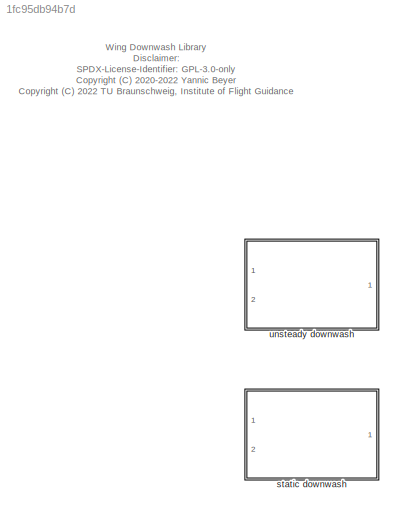
MODEL slx_1fc95db94b7d
KIND library
CONFIG AbsTol = auto
CONFIG EnableMultiTasking = off
CONFIG FixedStep = auto
CONFIG MaxStep = auto
CONFIG MinStep = auto
CONFIG RelTol = 1e-3
CONFIG SampleTimeConstraint = Unconstrained
CONFIG Solver = VariableStepAuto
CONFIG SolverName = VariableStepAuto
CONFIG StartTime = 0.0
CONFIG StopTime = 10.0
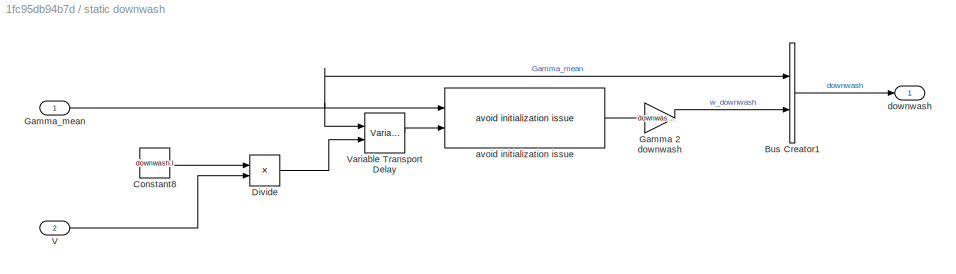
BLOCK [SubSystem] static downwash
  Ports = [2, 1]
  RequestExecContextInheritance = off
BLOCK [BusCreator] static downwash/Bus Creator1
  DisplayOption = bar
  InheritFromInputs = on
  Inputs = 2
  Ports = [2, 1]
BLOCK [Constant] static downwash/Constant8
  OutDataTypeStr = Inherit: Inherit via back propagation
  Value = downwash.l
BLOCK [Product] static downwash/Divide
  InputSameDT = off
  Inputs = */
  OutDataTypeStr = Inherit: Inherit via internal rule
  Ports = [2, 1]
  RndMeth = Floor
  SaturateOnIntegerOverflow = off
BLOCK [Gain] static downwash/Gamma 2 downwash
  Gain = downwash.b(end)/downwash.a(end)
  OutDataTypeStr = Inherit: Inherit via internal rule
  ParamDataTypeStr = Inherit: Inherit via internal rule
  SaturateOnIntegerOverflow = off
BLOCK [Inport] static downwash/Gamma_mean
  IconDisplay = Port number
BLOCK [Inport] static downwash/V
  IconDisplay = Port number
  Port = 2
BLOCK [VariableTransportDelay] static downwash/Variable Transport Delay
  MaximumDelay = 10
  Ports = [2, 1]
  VariableDelayType = Variable transport delay
BLOCK [Reference] static downwash/avoid initialization issue  REF=$bdroot/unsteady downwash/avoid initialization issue
  Ports = [2, 1]
  SourceBlock = $bdroot/unsteady downwash/avoid initialization issue
  SourceType = SubSystem
BLOCK [Outport] static downwash/downwash
  IconDisplay = Port number
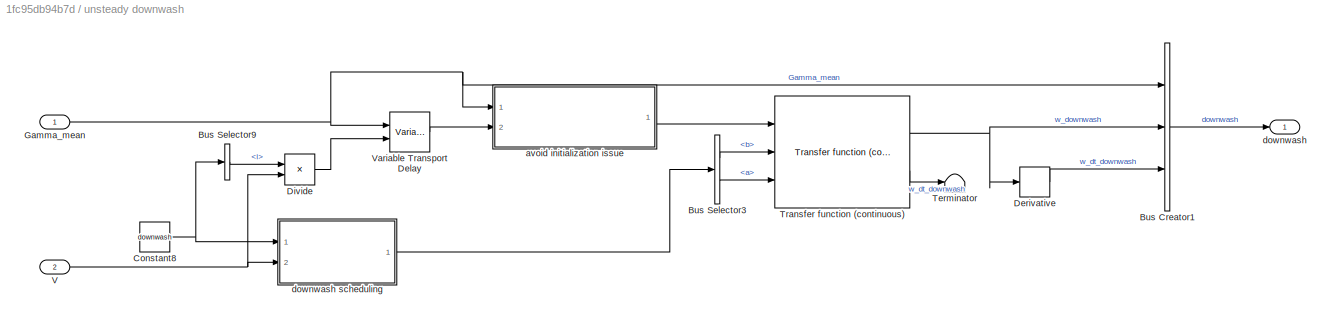
BLOCK [SubSystem] unsteady downwash
  Ports = [2, 1]
  RequestExecContextInheritance = off
BLOCK [BusCreator] unsteady downwash/Bus Creator1
  DisplayOption = bar
  InheritFromInputs = on
  Inputs = 3
  Ports = [3, 1]
BLOCK [BusSelector] unsteady downwash/Bus Selector3
  OutputAsBus = off
  OutputSignals = b,a
  Ports = [1, 2]
BLOCK [BusSelector] unsteady downwash/Bus Selector9
  OutputAsBus = off
  OutputSignals = l
  Ports = [1, 1]
BLOCK [Constant] unsteady downwash/Constant8
  OutDataTypeStr = Bus: downwash_bus
  Value = downwash
BLOCK [Derivative] unsteady downwash/Derivative
BLOCK [Product] unsteady downwash/Divide
  InputSameDT = off
  Inputs = */
  OutDataTypeStr = Inherit: Inherit via internal rule
  Ports = [2, 1]
  RndMeth = Floor
  SaturateOnIntegerOverflow = off
BLOCK [Inport] unsteady downwash/Gamma_mean
  IconDisplay = Port number
BLOCK [Terminator] unsteady downwash/Terminator
BLOCK [Reference] unsteady downwash/Transfer function (continuous)  REF=linear_systems_lib/Transfer function (continuous)  (lib defined in slx_6d7ae23f43cd)
  Ports = [3, 2]
  SourceBlock = linear_systems_lib/Transfer function (continuous)
  SourceProductName = LADAC
BLOCK [Inport] unsteady downwash/V
  IconDisplay = Port number
  Port = 2
BLOCK [VariableTransportDelay] unsteady downwash/Variable Transport Delay
  MaximumDelay = 10
  Ports = [2, 1]
  VariableDelayType = Variable transport delay
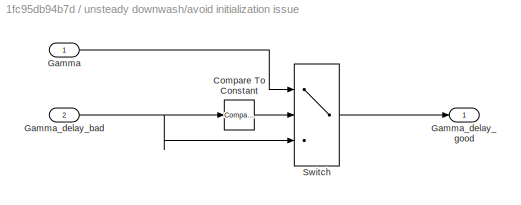
BLOCK [SubSystem] unsteady downwash/avoid initialization issue
  Ports = [2, 1]
  RequestExecContextInheritance = off
BLOCK [Reference] unsteady downwash/avoid initialization issue/Compare To Constant  REF=simulink/Logic and Bit
Operations/Compare
To Constant
  Ports = [1, 1]
  SourceBlock = simulink/Logic and Bit\nOperations/Compare\nTo Constant
  SourceProductBaseCode = SL
  SourceProductName = Simulink
  SourceType = Compare To Constant
BLOCK [Inport] unsteady downwash/avoid initialization issue/Gamma
  IconDisplay = Port number
BLOCK [Inport] unsteady downwash/avoid initialization issue/Gamma_delay_bad
  IconDisplay = Port number
  Port = 2
BLOCK [Outport] unsteady downwash/avoid initialization issue/Gamma_delay_good
  IconDisplay = Port number
BLOCK [Switch] unsteady downwash/avoid initialization issue/Switch
  Criteria = u2 > Threshold
  InputSameDT = off
  SaturateOnIntegerOverflow = off
  Threshold = 0.5
BLOCK [Outport] unsteady downwash/downwash
  IconDisplay = Port number
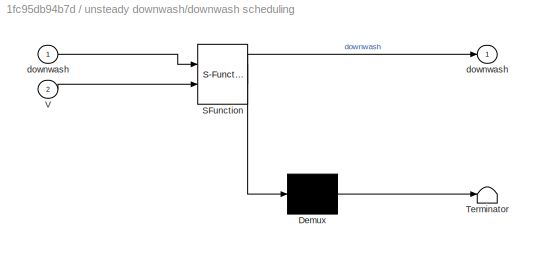
BLOCK [SubSystem] unsteady downwash/downwash scheduling
  ErrorFcn = Stateflow.Translate.translate
  PermitHierarchicalResolution = ExplicitOnly
  Ports = [2, 1]
  RequestExecContextInheritance = off
  SFBlockType = MATLAB Function
  TreatAsAtomicUnit = on
BLOCK [Demux] unsteady downwash/downwash scheduling/ Demux 
  Outputs = 1
  Ports = [1, 1]
BLOCK [S-Function] unsteady downwash/downwash scheduling/ SFunction 
  EnableBusSupport = off
  FunctionName = sf_sfun
  PortCounts = [2 2]
  Ports = [2, 2]
  SFcnIsStateOwnerBlock = off
  SFunctionDeploymentMode = off
  Tag = Stateflow S-Function wing_downwash_lib 9
BLOCK [Terminator] unsteady downwash/downwash scheduling/ Terminator 
BLOCK [Inport] unsteady downwash/downwash scheduling/V
  IconDisplay = Port number
  Port = 2
BLOCK [Outport] unsteady downwash/downwash scheduling/downwash
  IconDisplay = Port number
BLOCK [Inport] unsteady downwash/downwash scheduling/downwash 
  IconDisplay = Port number
ANNOTATION (root): Wing Downwash Library Disclaimer: SPDX-License-Identifier: GPL-3.0-only <copyright redacted>
LINE static downwash/Bus Creator1:1 -> static downwash/downwash:1
LINE static downwash/Constant8:1 -> static downwash/Divide:1
LINE static downwash/Divide:1 -> static downwash/Variable Transport Delay:2
LINE static downwash/Gamma 2 downwash:1 -> static downwash/Bus Creator1:2
NET static downwash/Gamma_mean:1 -> static downwash/Bus Creator1:1, static downwash/Variable Transport Delay:1, static downwash/avoid initialization issue:1
LINE static downwash/V:1 -> static downwash/Divide:2
LINE static downwash/Variable Transport Delay:1 -> static downwash/avoid initialization issue:2
LINE static downwash/avoid initialization issue:1 -> static downwash/Gamma 2 downwash:1
LINE unsteady downwash/Bus Creator1:1 -> unsteady downwash/downwash:1
LINE unsteady downwash/Bus Selector3:1 -> unsteady downwash/Transfer function (continuous):2
LINE unsteady downwash/Bus Selector3:2 -> unsteady downwash/Transfer function (continuous):3
LINE unsteady downwash/Bus Selector9:1 -> unsteady downwash/Divide:1
NET unsteady downwash/Constant8:1 -> unsteady downwash/Bus Selector9:1, unsteady downwash/downwash scheduling:1
LINE unsteady downwash/Derivative:1 -> unsteady downwash/Bus Creator1:3
LINE unsteady downwash/Divide:1 -> unsteady downwash/Variable Transport Delay:2
NET unsteady downwash/Gamma_mean:1 -> unsteady downwash/Bus Creator1:1, unsteady downwash/Variable Transport Delay:1, unsteady downwash/avoid initialization issue:1
NET unsteady downwash/Transfer function (continuous):1 -> unsteady downwash/Bus Creator1:2, unsteady downwash/Derivative:1
LINE unsteady downwash/Transfer function (continuous):2 -> unsteady downwash/Terminator:1
NET unsteady downwash/V:1 -> unsteady downwash/Divide:2, unsteady downwash/downwash scheduling:2
LINE unsteady downwash/Variable Transport Delay:1 -> unsteady downwash/avoid initialization issue:2
LINE unsteady downwash/avoid initialization issue/Compare To Constant:1 -> unsteady downwash/avoid initialization issue/Switch:2
LINE unsteady downwash/avoid initialization issue/Gamma:1 -> unsteady downwash/avoid initialization issue/Switch:1
NET unsteady downwash/avoid initialization issue/Gamma_delay_bad:1 -> unsteady downwash/avoid initialization issue/Compare To Constant:1, unsteady downwash/avoid initialization issue/Switch:3
LINE unsteady downwash/avoid initialization issue/Switch:1 -> unsteady downwash/avoid initialization issue/Gamma_delay_good:1
LINE unsteady downwash/avoid initialization issue:1 -> unsteady downwash/Transfer function (continuous):1
LINE unsteady downwash/downwash scheduling:1 -> unsteady downwash/Bus Selector3:1
note: NET lines group one-source signal fan-out (src -> all destinations, sorted); 1:1 wires keep LINE
CHART unsteady downwash/downwash scheduling states=1 transitions=1
  STATE_LABEL 'eML_blk_kernel()'
  STATE_LABEL 'SCRIPT:\nfunction downwash = fcn(downwash, V)\ndownwash = downwashUnstSchedule(downwash,V);\nend'
